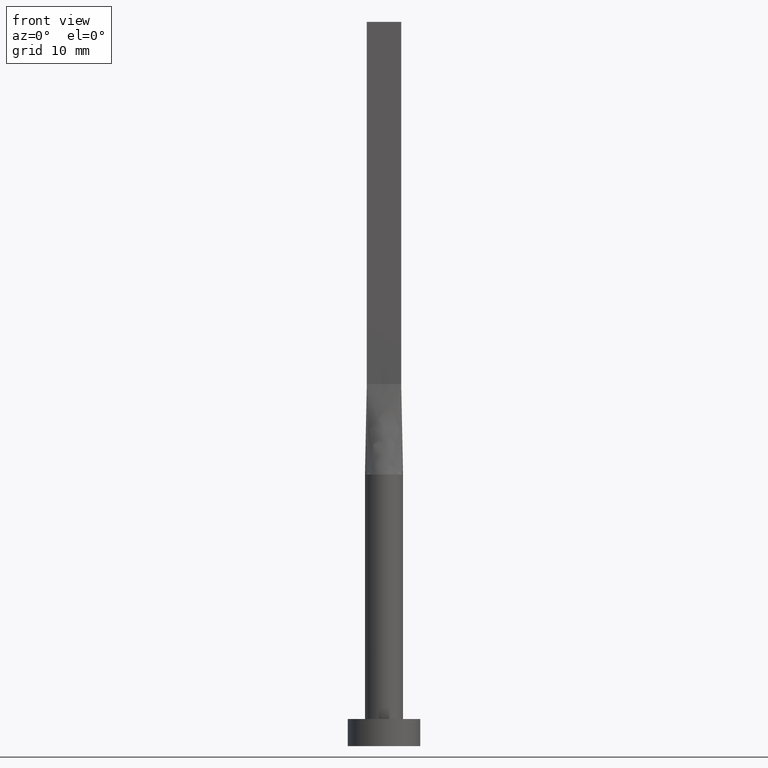
[diagram: clean part render]
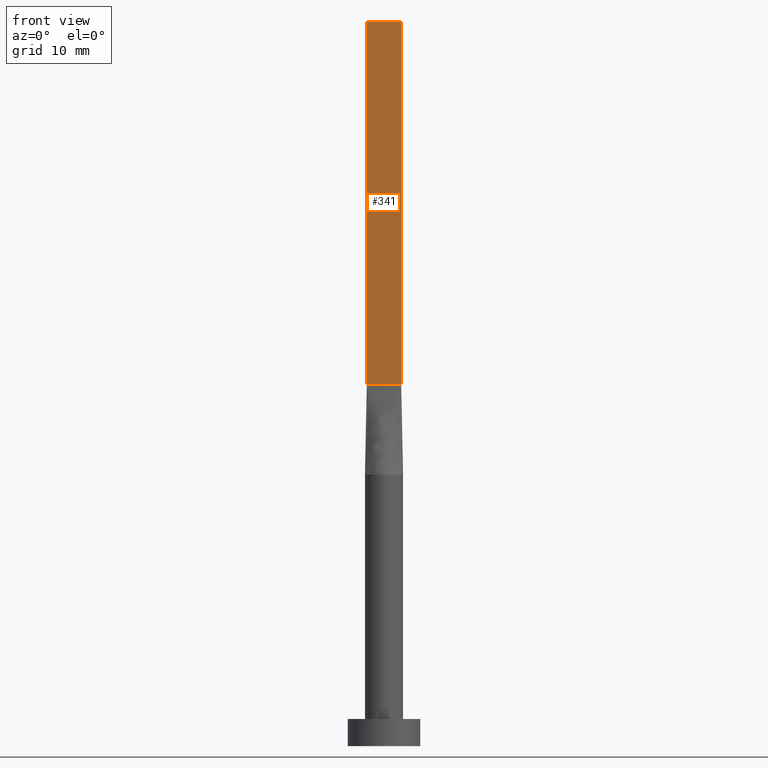
[diagram: same view with one face highlighted and labeled with its STEP entity id]
A machine part, front view. The second image highlights one B-rep face of the part: STEP entity #341.
In plain terms, the highlighted planar face has unit normal (0, 1, -0).
Its self-contained STEP definition (entity closure, byte-faithful):
#4 = AXIS2_PLACEMENT_3D ( 'NONE', #367, #493, #276 ) ;
#12 = CARTESIAN_POINT ( 'NONE',  ( -1.899999999999999911, -0.5999999999999995337, 80.00000000000000000 ) ) ;
#15 = VECTOR ( 'NONE', #430, 1000.000000000000000 ) ;
#26 = CARTESIAN_POINT ( 'NONE',  ( 1.899999999999999023, -0.5999999999999997558, 40.00000000000000000 ) ) ;
#28 = EDGE_CURVE ( 'NONE', #198, #228, #481, .T. ) ;
#53 = ORIENTED_EDGE ( 'NONE', *, *, #359, .T. ) ;
#80 = CARTESIAN_POINT ( 'NONE',  ( -1.899999999999999911, -0.5999999999999995337, 40.00000000000000000 ) ) ;
#104 = EDGE_LOOP ( 'NONE', ( #380, #245, #423, #53 ) ) ;
#113 = CARTESIAN_POINT ( 'NONE',  ( -1.899999999999999911, -0.5999999999999995337, 80.00000000000000000 ) ) ;
#165 = EDGE_CURVE ( 'NONE', #394, #215, #294, .T. ) ;
#181 = PLANE ( 'NONE',  #4 ) ;
#198 = VERTEX_POINT ( 'NONE', #372 ) ;
#208 = LINE ( 'NONE', #383, #416 ) ;
#215 = VERTEX_POINT ( 'NONE', #344 ) ;
#228 = VERTEX_POINT ( 'NONE', #26 ) ;
#237 = EDGE_CURVE ( 'NONE', #215, #228, #208, .T. ) ;
#245 = ORIENTED_EDGE ( 'NONE', *, *, #237, .F. ) ;
#276 = DIRECTION ( 'NONE',  ( -1.000000000000000000, 5.706327223607918787E-17, 0.000000000000000000 ) ) ;
#292 = CARTESIAN_POINT ( 'NONE',  ( -1.899999999999999911, -0.5999999999999995337, 80.00000000000000000 ) ) ;
#294 = LINE ( 'NONE', #113, #435 ) ;
#331 = LINE ( 'NONE', #292, #425 ) ;
#341 = ADVANCED_FACE ( 'NONE', ( #364 ), #181, .F. ) ;
#344 = CARTESIAN_POINT ( 'NONE',  ( 1.899999999999999023, -0.5999999999999997558, 80.00000000000000000 ) ) ;
#359 = EDGE_CURVE ( 'NONE', #394, #198, #331, .T. ) ;
#364 = FACE_OUTER_BOUND ( 'NONE', #104, .T. ) ;
#367 = CARTESIAN_POINT ( 'NONE',  ( -1.899999999999999911, -0.5999999999999995337, 80.00000000000000000 ) ) ;
#372 = CARTESIAN_POINT ( 'NONE',  ( -1.899999999999999911, -0.5999999999999995337, 40.00000000000000000 ) ) ;
#380 = ORIENTED_EDGE ( 'NONE', *, *, #28, .T. ) ;
#383 = CARTESIAN_POINT ( 'NONE',  ( 1.899999999999999023, -0.5999999999999997558, 80.00000000000000000 ) ) ;
#394 = VERTEX_POINT ( 'NONE', #12 ) ;
#416 = VECTOR ( 'NONE', #469, 1000.000000000000000 ) ;
#423 = ORIENTED_EDGE ( 'NONE', *, *, #165, .F. ) ;
#425 = VECTOR ( 'NONE', #451, 1000.000000000000000 ) ;
#430 = DIRECTION ( 'NONE',  ( 1.000000000000000000, -5.706327223607918787E-17, 0.000000000000000000 ) ) ;
#435 = VECTOR ( 'NONE', #465, 1000.000000000000000 ) ;
#451 = DIRECTION ( 'NONE',  ( -0.000000000000000000, -0.000000000000000000, -1.000000000000000000 ) ) ;
#465 = DIRECTION ( 'NONE',  ( 1.000000000000000000, -5.706327223607920020E-17, 0.000000000000000000 ) ) ;
#469 = DIRECTION ( 'NONE',  ( -0.000000000000000000, -0.000000000000000000, -1.000000000000000000 ) ) ;
#481 = LINE ( 'NONE', #80, #15 ) ;
#493 = DIRECTION ( 'NONE',  ( 5.706327223607918787E-17, 1.000000000000000000, -0.000000000000000000 ) ) ;